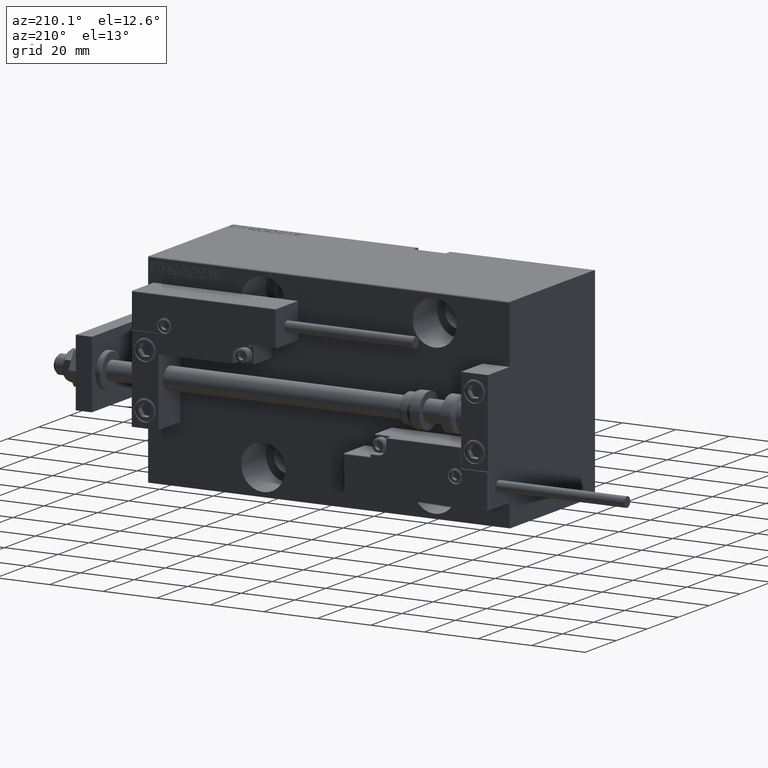
[diagram: clean part render]
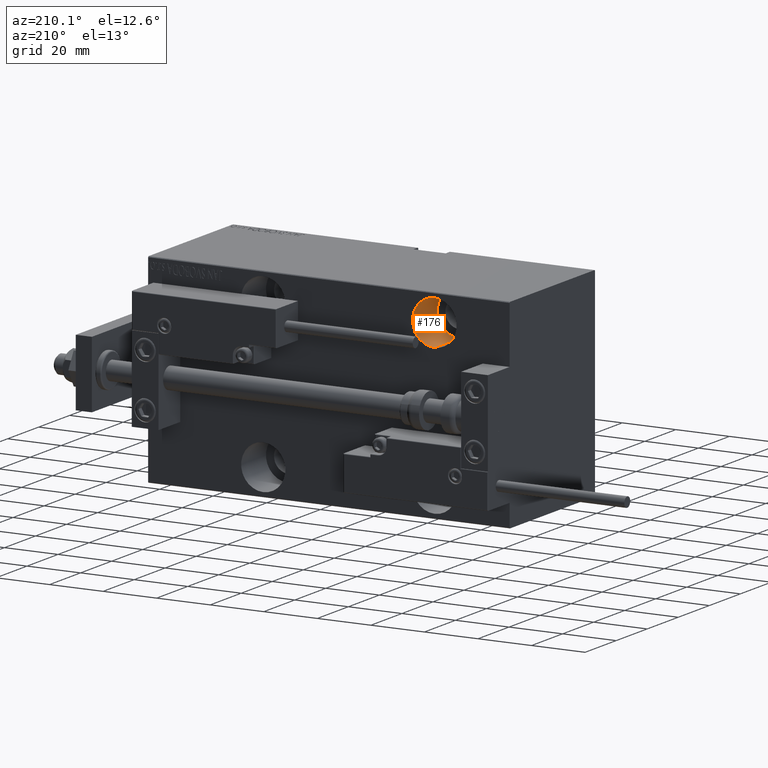
[diagram: same view with one face highlighted and labeled with its STEP entity id]
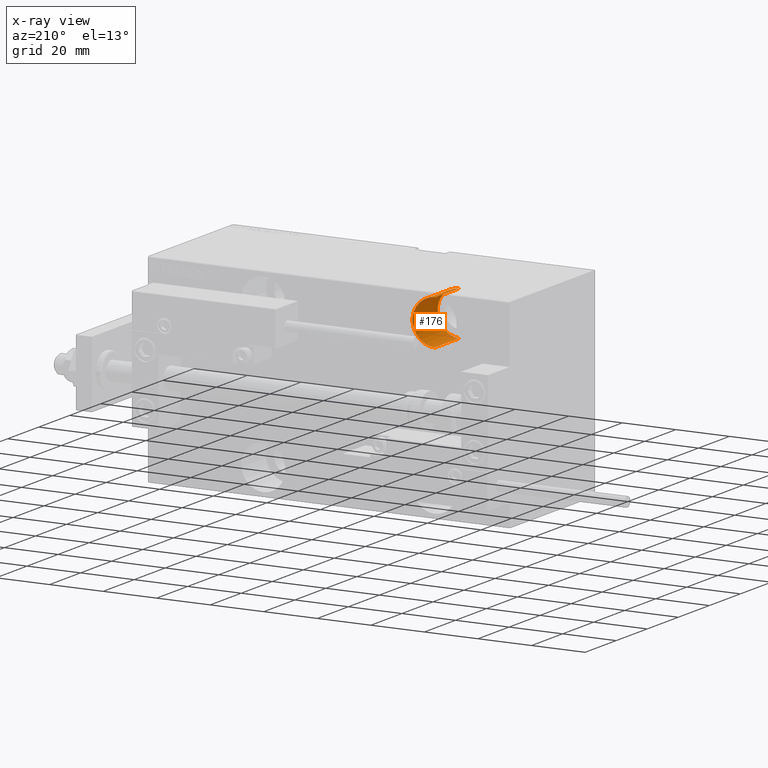
[diagram: x-ray of the same camera — body ghosted, the highlighted face saturated]
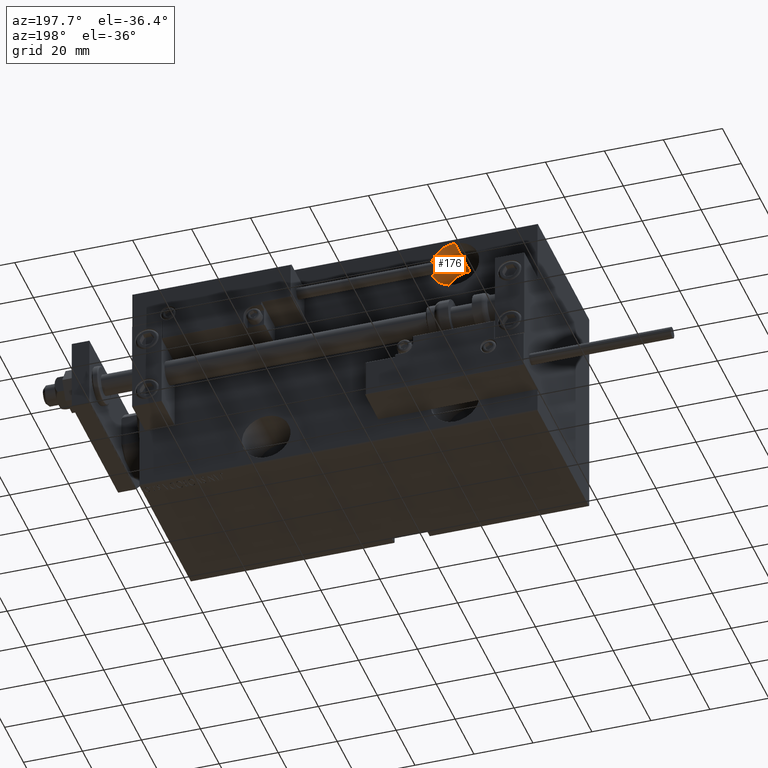
[diagram: same view with one face highlighted and labeled with its STEP entity id]
A machine part, auxiliary view. The second image highlights one B-rep face of the part: STEP entity #176.
The next image is the same camera in x-ray: the body ghosted, the highlighted face saturated — about 0% of this face is hidden behind the body in this view.
A second angle (auxiliary view) of the same face is appended — the face is thin or edge-on in the first view.
In plain terms, the highlighted cylindrical surface (edge-blend (fillet) strip) has radius 8.25 mm, axis along (0, 1, -0).
Its self-contained STEP definition (entity closure, byte-faithful):
#176 = ADVANCED_FACE ( 'NONE', ( #15652 ), #42840, .F. ) ;
#505 = CARTESIAN_POINT ( 'NONE',  ( 107.0000000000000142, -11.50000000000000000, 27.49999999999998579 ) ) ;
#2070 = CARTESIAN_POINT ( 'NONE',  ( 107.0000000000000142, -27.50000000000000000, 27.49999999999998579 ) ) ;
#3880 = VERTEX_POINT ( 'NONE', #45734 ) ;
#4124 = DIRECTION ( 'NONE',  ( -0.000000000000000000, -1.000000000000000000, -0.000000000000000000 ) ) ;
#7171 = CARTESIAN_POINT ( 'NONE',  ( 107.0000000000000142, -11.50000000000000000, 35.75000000000000000 ) ) ;
#7832 = DIRECTION ( 'NONE',  ( 0.000000000000000000, 0.000000000000000000, -1.000000000000000000 ) ) ;
#8353 = CARTESIAN_POINT ( 'NONE',  ( 107.0000000000000142, -11.50000000000000000, 27.49999999999998579 ) ) ;
#8863 = DIRECTION ( 'NONE',  ( -0.000000000000000000, -1.000000000000000000, -0.000000000000000000 ) ) ;
#9722 = ORIENTED_EDGE ( 'NONE', *, *, #27877, .T. ) ;
#10811 = EDGE_CURVE ( 'NONE', #35611, #21734, #17301, .T. ) ;
#10882 = DIRECTION ( 'NONE',  ( 0.000000000000000000, 0.000000000000000000, -1.000000000000000000 ) ) ;
#15652 = FACE_OUTER_BOUND ( 'NONE', #43884, .T. ) ;
#15870 = DIRECTION ( 'NONE',  ( 0.000000000000000000, -1.000000000000000000, 0.000000000000000000 ) ) ;
#16744 = ORIENTED_EDGE ( 'NONE', *, *, #24816, .T. ) ;
#17301 = LINE ( 'NONE', #48006, #23467 ) ;
#18990 = LINE ( 'NONE', #7171, #25670 ) ;
#19238 = CIRCLE ( 'NONE', #25678, 8.250000000000010658 ) ;
#21734 = VERTEX_POINT ( 'NONE', #40307 ) ;
#23467 = VECTOR ( 'NONE', #44237, 1000.000000000000000 ) ;
#24816 = EDGE_CURVE ( 'NONE', #30483, #21734, #19238, .T. ) ;
#25670 = VECTOR ( 'NONE', #4124, 1000.000000000000000 ) ;
#25678 = AXIS2_PLACEMENT_3D ( 'NONE', #2070, #42091, #10882 ) ;
#27877 = EDGE_CURVE ( 'NONE', #3880, #30483, #18990, .T. ) ;
#30483 = VERTEX_POINT ( 'NONE', #38599 ) ;
#33389 = ORIENTED_EDGE ( 'NONE', *, *, #38810, .F. ) ;
#35611 = VERTEX_POINT ( 'NONE', #41955 ) ;
#38599 = CARTESIAN_POINT ( 'NONE',  ( 107.0000000000000142, -27.50000000000000000, 35.75000000000000000 ) ) ;
#38789 = ORIENTED_EDGE ( 'NONE', *, *, #10811, .F. ) ;
#38810 = EDGE_CURVE ( 'NONE', #3880, #35611, #48661, .T. ) ;
#39592 = DIRECTION ( 'NONE',  ( 0.000000000000000000, 0.000000000000000000, -1.000000000000000000 ) ) ;
#40307 = CARTESIAN_POINT ( 'NONE',  ( 107.0000000000000142, -27.50000000000000000, 19.24999999999997513 ) ) ;
#41415 = AXIS2_PLACEMENT_3D ( 'NONE', #505, #15870, #7832 ) ;
#41955 = CARTESIAN_POINT ( 'NONE',  ( 107.0000000000000142, -11.50000000000000000, 19.24999999999997513 ) ) ;
#42091 = DIRECTION ( 'NONE',  ( 0.000000000000000000, -1.000000000000000000, 0.000000000000000000 ) ) ;
#42471 = AXIS2_PLACEMENT_3D ( 'NONE', #8353, #8863, #39592 ) ;
#42840 = CYLINDRICAL_SURFACE ( 'NONE', #42471, 8.250000000000010658 ) ;
#43884 = EDGE_LOOP ( 'NONE', ( #33389, #9722, #16744, #38789 ) ) ;
#44237 = DIRECTION ( 'NONE',  ( -0.000000000000000000, -1.000000000000000000, -0.000000000000000000 ) ) ;
#45734 = CARTESIAN_POINT ( 'NONE',  ( 107.0000000000000142, -11.50000000000000000, 35.75000000000000000 ) ) ;
#48006 = CARTESIAN_POINT ( 'NONE',  ( 107.0000000000000142, -11.50000000000000000, 19.24999999999997513 ) ) ;
#48661 = CIRCLE ( 'NONE', #41415, 8.250000000000010658 ) ;